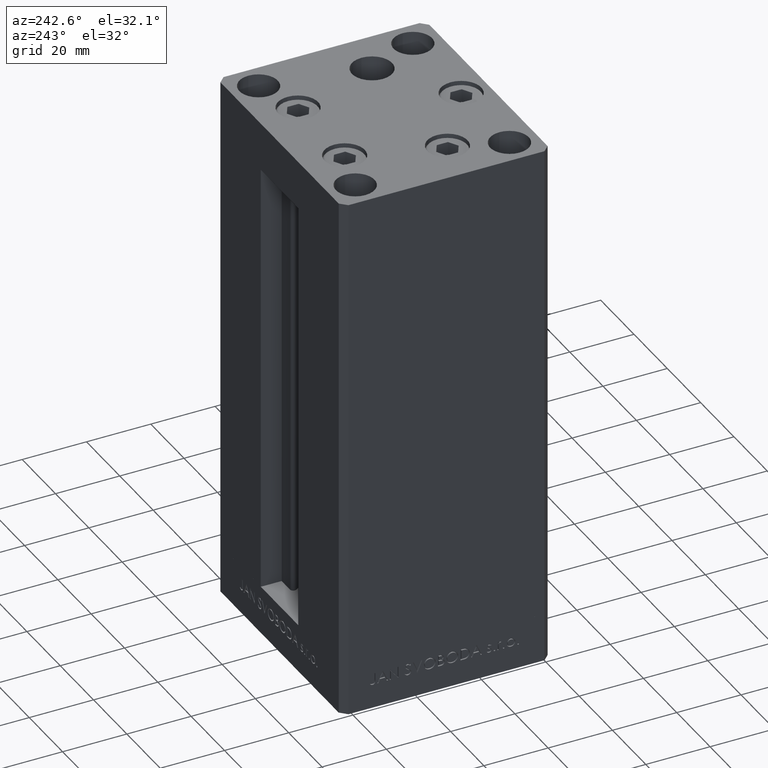
[diagram: clean part render]
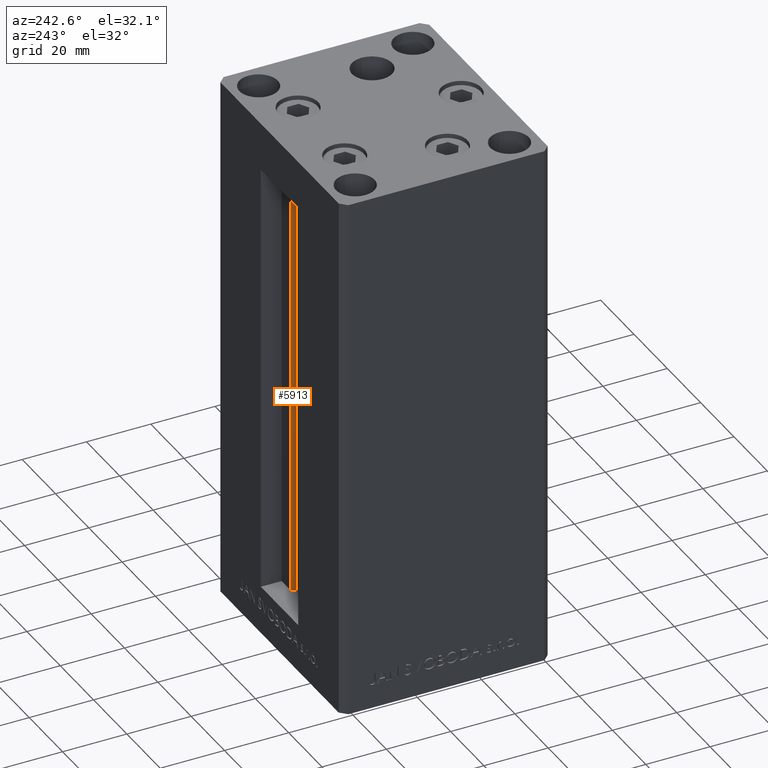
[diagram: same view with one face highlighted and labeled with its STEP entity id]
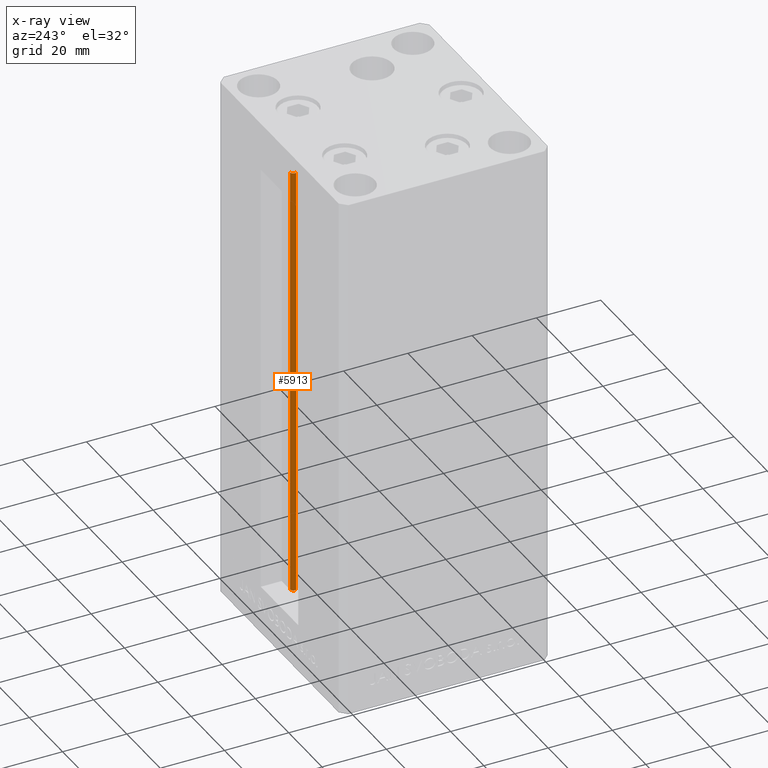
[diagram: x-ray of the same camera — body ghosted, the highlighted face saturated]
A machine part, auxiliary view. The second image highlights one B-rep face of the part: STEP entity #5913.
The next image is the same camera in x-ray: the body ghosted, the highlighted face saturated — about 0% of this face is hidden behind the body in this view.
In plain terms, the highlighted cylindrical surface (edge-blend (fillet) strip) has radius 0.9333 mm, axis along (0, 0, 1).
Its self-contained STEP definition (entity closure, byte-faithful):
#1094 = EDGE_LOOP ( 'NONE', ( #3496, #5187, #16459, #43379 ) ) ;
#2167 = LINE ( 'NONE', #27807, #17173 ) ;
#3496 = ORIENTED_EDGE ( 'NONE', *, *, #35243, .F. ) ;
#5187 = ORIENTED_EDGE ( 'NONE', *, *, #29498, .F. ) ;
#5913 = ADVANCED_FACE ( 'NONE', ( #17826 ), #11078, .T. ) ;
#7411 = CARTESIAN_POINT ( 'NONE',  ( 5.375042956467947164, 24.59999999999899245, 0.000000000000000000 ) ) ;
#7513 = CARTESIAN_POINT ( 'NONE',  ( 6.183333333334001480, 25.06666666666599141, 136.0000000000000000 ) ) ;
#9361 = VERTEX_POINT ( 'NONE', #19202 ) ;
#10359 = CARTESIAN_POINT ( 'NONE',  ( 6.183333333334001480, 25.99999999999999289, 136.0000000000000000 ) ) ;
#11078 = CYLINDRICAL_SURFACE ( 'NONE', #44646, 0.9333333333340008142 ) ;
#11555 = CIRCLE ( 'NONE', #17916, 0.9333333333340008142 ) ;
#11735 = DIRECTION ( 'NONE',  ( 1.000000000000000000, 0.000000000000000000, 0.000000000000000000 ) ) ;
#12776 = DIRECTION ( 'NONE',  ( -0.000000000000000000, -0.000000000000000000, 1.000000000000000000 ) ) ;
#14090 = DIRECTION ( 'NONE',  ( -0.000000000000000000, -0.000000000000000000, 1.000000000000000000 ) ) ;
#16459 = ORIENTED_EDGE ( 'NONE', *, *, #45526, .T. ) ;
#17173 = VECTOR ( 'NONE', #24081, 1000.000000000000000 ) ;
#17826 = FACE_OUTER_BOUND ( 'NONE', #1094, .T. ) ;
#17916 = AXIS2_PLACEMENT_3D ( 'NONE', #47437, #36212, #48410 ) ;
#19202 = CARTESIAN_POINT ( 'NONE',  ( 6.183333333334001480, 25.99999999999999289, 0.000000000000000000 ) ) ;
#19491 = EDGE_CURVE ( 'NONE', #27546, #35283, #19986, .T. ) ;
#19986 = CIRCLE ( 'NONE', #23963, 0.9333333333340008142 ) ;
#23963 = AXIS2_PLACEMENT_3D ( 'NONE', #7513, #34158, #11735 ) ;
#24081 = DIRECTION ( 'NONE',  ( -0.000000000000000000, -0.000000000000000000, 1.000000000000000000 ) ) ;
#27546 = VERTEX_POINT ( 'NONE', #41188 ) ;
#27807 = CARTESIAN_POINT ( 'NONE',  ( 6.183333333334001480, 25.99999999999999289, 0.000000000000000000 ) ) ;
#27935 = VECTOR ( 'NONE', #12776, 1000.000000000000000 ) ;
#29498 = EDGE_CURVE ( 'NONE', #34087, #9361, #11555, .T. ) ;
#34087 = VERTEX_POINT ( 'NONE', #7411 ) ;
#34158 = DIRECTION ( 'NONE',  ( 0.000000000000000000, 0.000000000000000000, -1.000000000000000000 ) ) ;
#35243 = EDGE_CURVE ( 'NONE', #9361, #35283, #2167, .T. ) ;
#35283 = VERTEX_POINT ( 'NONE', #10359 ) ;
#36212 = DIRECTION ( 'NONE',  ( -0.000000000000000000, -0.000000000000000000, -1.000000000000000000 ) ) ;
#41188 = CARTESIAN_POINT ( 'NONE',  ( 5.375042956467948052, 24.59999999999899245, 136.0000000000000000 ) ) ;
#42451 = CARTESIAN_POINT ( 'NONE',  ( 5.375042956467947164, 24.59999999999899245, 0.000000000000000000 ) ) ;
#43189 = LINE ( 'NONE', #42451, #27935 ) ;
#43379 = ORIENTED_EDGE ( 'NONE', *, *, #19491, .T. ) ;
#44646 = AXIS2_PLACEMENT_3D ( 'NONE', #48008, #14090, #48484 ) ;
#45526 = EDGE_CURVE ( 'NONE', #34087, #27546, #43189, .T. ) ;
#47437 = CARTESIAN_POINT ( 'NONE',  ( 6.183333333334001480, 25.06666666666599141, 0.000000000000000000 ) ) ;
#48008 = CARTESIAN_POINT ( 'NONE',  ( 6.183333333334001480, 25.06666666666599141, 0.000000000000000000 ) ) ;
#48410 = DIRECTION ( 'NONE',  ( 1.000000000000000000, 0.000000000000000000, 0.000000000000000000 ) ) ;
#48484 = DIRECTION ( 'NONE',  ( 1.000000000000000000, 0.000000000000000000, 0.000000000000000000 ) ) ;